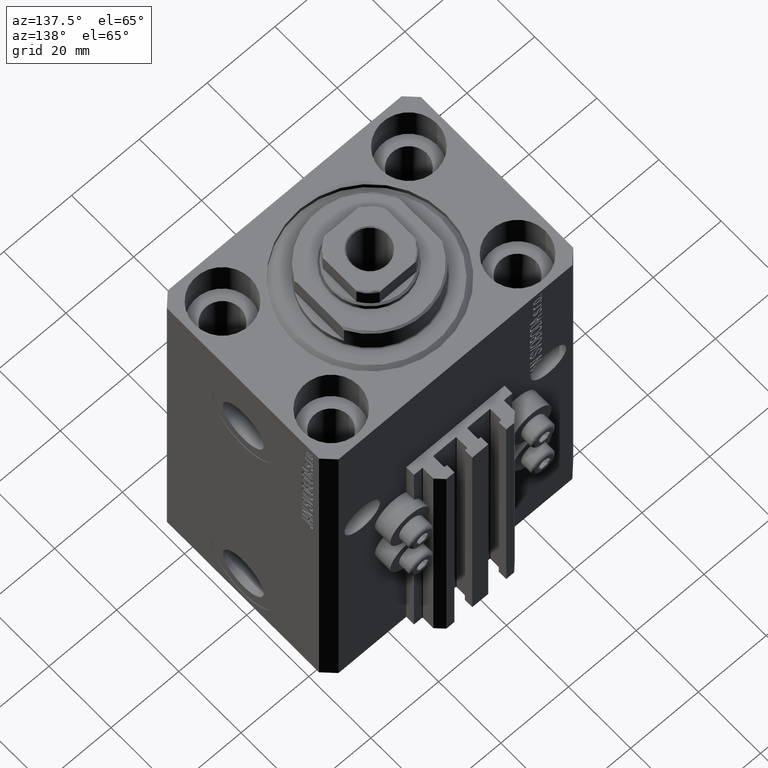
[diagram: clean part render]
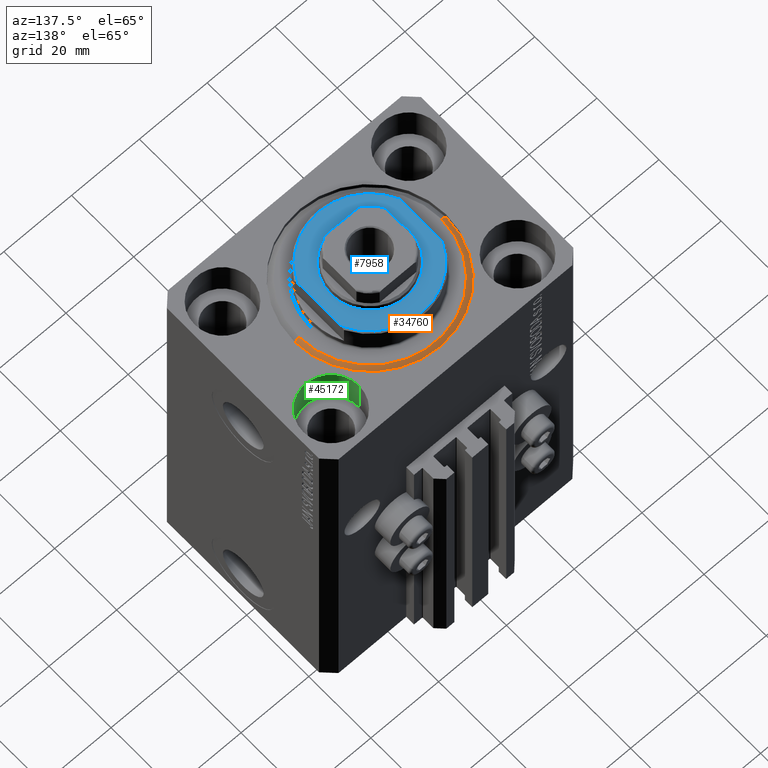
[diagram: same view with three faces highlighted in distinct colors, each labeled with its STEP entity id]
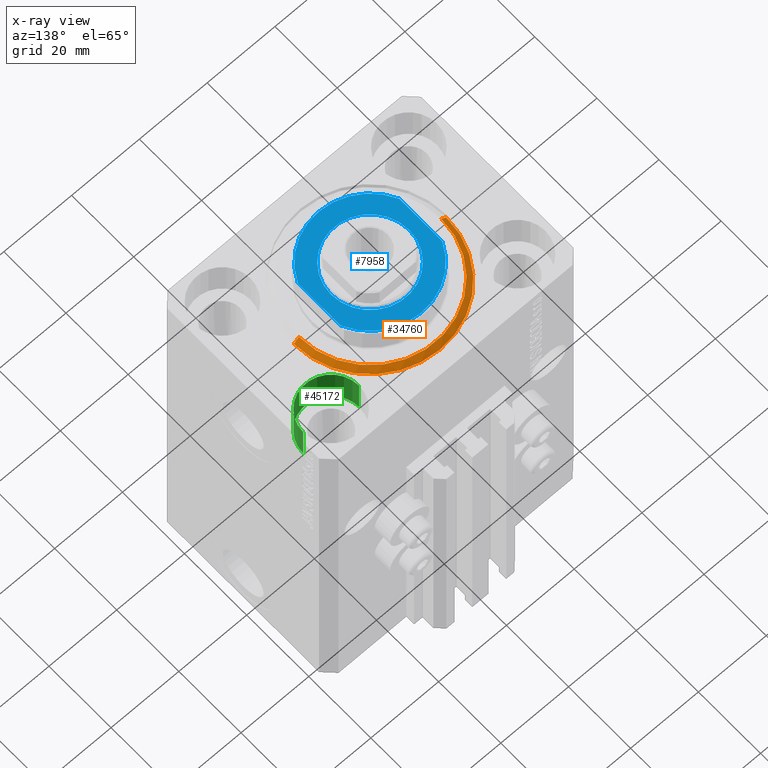
[diagram: x-ray of the same camera — body ghosted, the three highlighted faces saturated]
A machine part, auxiliary view with three faces highlighted in distinct colors.
The next image is the same camera in x-ray (body ghosted, the three faces saturated) — at least one of them is partly hidden behind the body in this view.
Their STEP definitions:

[orange] entity #34760 — the highlighted conical surface has half-angle 45 deg.
#51 = VERTEX_POINT ( 'NONE', #41482 ) ;
#439 = EDGE_LOOP ( 'NONE', ( #17323, #38061, #9336, #28697 ) ) ;
#1588 = DIRECTION ( 'NONE',  ( 1.000000000000000000, 0.000000000000000000, 0.000000000000000000 ) ) ;
#2478 = VERTEX_POINT ( 'NONE', #21731 ) ;
#2783 = CARTESIAN_POINT ( 'NONE',  ( 0.000000000000000000, 0.000000000000000000, 0.000000000000000000 ) ) ;
#3760 = EDGE_CURVE ( 'NONE', #4050, #43584, #44636, .T. ) ;
#4050 = VERTEX_POINT ( 'NONE', #32427 ) ;
#5272 = LINE ( 'NONE', #19864, #29986 ) ;
#5622 = CONICAL_SURFACE ( 'NONE', #42289, 22.50000000000000355, 0.7853981633974517207 ) ;
#6841 = CARTESIAN_POINT ( 'NONE',  ( -22.50000000000000355, 2.755455298081545172E-15, 1.500000000000039524 ) ) ;
#7854 = VECTOR ( 'NONE', #35551, 1000.000000000000114 ) ;
#9336 = ORIENTED_EDGE ( 'NONE', *, *, #3760, .F. ) ;
#10425 = LINE ( 'NONE', #6841, #7854 ) ;
#11978 = EDGE_CURVE ( 'NONE', #51, #4050, #5272, .T. ) ;
#12146 = DIRECTION ( 'NONE',  ( -0.000000000000000000, -0.000000000000000000, 1.000000000000000000 ) ) ;
#14144 = EDGE_CURVE ( 'NONE', #2478, #51, #24593, .T. ) ;
#17151 = AXIS2_PLACEMENT_3D ( 'NONE', #44928, #12146, #34627 ) ;
#17323 = ORIENTED_EDGE ( 'NONE', *, *, #14144, .F. ) ;
#19864 = CARTESIAN_POINT ( 'NONE',  ( 22.50000000000000355, 0.000000000000000000, 1.500000000000039524 ) ) ;
#21731 = CARTESIAN_POINT ( 'NONE',  ( -20.99999999999995381, 2.663606788145490261E-15, 0.000000000000000000 ) ) ;
#24593 = CIRCLE ( 'NONE', #27629, 20.99999999999995381 ) ;
#27429 = FACE_OUTER_BOUND ( 'NONE', #439, .T. ) ;
#27629 = AXIS2_PLACEMENT_3D ( 'NONE', #2783, #35553, #31971 ) ;
#28697 = ORIENTED_EDGE ( 'NONE', *, *, #11978, .F. ) ;
#29986 = VECTOR ( 'NONE', #41164, 1000.000000000000114 ) ;
#31018 = CARTESIAN_POINT ( 'NONE',  ( 0.000000000000000000, 0.000000000000000000, 1.500000000000039524 ) ) ;
#31971 = DIRECTION ( 'NONE',  ( 1.000000000000000000, 0.000000000000000000, 0.000000000000000000 ) ) ;
#32427 = CARTESIAN_POINT ( 'NONE',  ( 22.50000000000000355, 2.755455298081544383E-15, 1.500000000000039524 ) ) ;
#33984 = CARTESIAN_POINT ( 'NONE',  ( -22.50000000000000355, 0.000000000000000000, 1.500000000000039524 ) ) ;
#34627 = DIRECTION ( 'NONE',  ( 1.000000000000000000, 0.000000000000000000, 0.000000000000000000 ) ) ;
#34760 = ADVANCED_FACE ( 'NONE', ( #27429 ), #5622, .T. ) ;
#34846 = DIRECTION ( 'NONE',  ( -0.000000000000000000, -0.000000000000000000, 1.000000000000000000 ) ) ;
#35551 = DIRECTION ( 'NONE',  ( -0.7071067811865500152, 8.659560562354962440E-17, 0.7071067811865451302 ) ) ;
#35553 = DIRECTION ( 'NONE',  ( -0.000000000000000000, -0.000000000000000000, -1.000000000000000000 ) ) ;
#35741 = EDGE_CURVE ( 'NONE', #2478, #43584, #10425, .T. ) ;
#38061 = ORIENTED_EDGE ( 'NONE', *, *, #35741, .T. ) ;
#41164 = DIRECTION ( 'NONE',  ( 0.7071067811865500152, 0.000000000000000000, 0.7071067811865451302 ) ) ;
#41482 = CARTESIAN_POINT ( 'NONE',  ( 20.99999999999995381, 0.000000000000000000, 0.000000000000000000 ) ) ;
#42289 = AXIS2_PLACEMENT_3D ( 'NONE', #31018, #34846, #1588 ) ;
#43584 = VERTEX_POINT ( 'NONE', #33984 ) ;
#44636 = CIRCLE ( 'NONE', #17151, 22.50000000000000355 ) ;
#44928 = CARTESIAN_POINT ( 'NONE',  ( 0.000000000000000000, 0.000000000000000000, 1.500000000000039524 ) ) ;

[blue] entity #7958 — the highlighted planar face has unit normal (0, 0, 1).
#329 = EDGE_CURVE ( 'NONE', #24292, #32311, #24827, .T. ) ;
#525 = CARTESIAN_POINT ( 'NONE',  ( 11.49999999999998934, 1.408343819019454795E-15, -8.000000000000000000 ) ) ;
#617 = AXIS2_PLACEMENT_3D ( 'NONE', #29382, #29616, #14322 ) ;
#763 = CARTESIAN_POINT ( 'NONE',  ( -15.00000000000000000, -42.42640687119285303, -8.000000000000000000 ) ) ;
#1521 = FACE_BOUND ( 'NONE', #31257, .T. ) ;
#2416 = CARTESIAN_POINT ( 'NONE',  ( -11.49999999999998934, 0.000000000000000000, -8.000000000000000000 ) ) ;
#2431 = CARTESIAN_POINT ( 'NONE',  ( 0.000000000000000000, 0.000000000000000000, -8.000000000000000000 ) ) ;
#2886 = ORIENTED_EDGE ( 'NONE', *, *, #27563, .F. ) ;
#3593 = EDGE_CURVE ( 'NONE', #27417, #27607, #21272, .T. ) ;
#4772 = ORIENTED_EDGE ( 'NONE', *, *, #27584, .T. ) ;
#7958 = ADVANCED_FACE ( 'NONE', ( #1521, #20415 ), #27122, .T. ) ;
#9147 = CARTESIAN_POINT ( 'NONE',  ( -15.00000000000000000, -6.873863542433783280, -8.000000000000000000 ) ) ;
#9987 = DIRECTION ( 'NONE',  ( 0.000000000000000000, -1.000000000000000000, -0.000000000000000000 ) ) ;
#11661 = EDGE_CURVE ( 'NONE', #32311, #35120, #29957, .T. ) ;
#13034 = ORIENTED_EDGE ( 'NONE', *, *, #3593, .T. ) ;
#13197 = CIRCLE ( 'NONE', #19271, 16.50000000000000711 ) ;
#13253 = DIRECTION ( 'NONE',  ( 0.000000000000000000, 0.000000000000000000, -1.000000000000000000 ) ) ;
#13906 = AXIS2_PLACEMENT_3D ( 'NONE', #2431, #17052, #42631 ) ;
#14124 = CARTESIAN_POINT ( 'NONE',  ( 14.99999999999999645, 6.873863542433781504, -8.000000000000000000 ) ) ;
#14322 = DIRECTION ( 'NONE',  ( -1.000000000000000000, 0.000000000000000000, 0.000000000000000000 ) ) ;
#17048 = AXIS2_PLACEMENT_3D ( 'NONE', #38844, #13253, #46051 ) ;
#17052 = DIRECTION ( 'NONE',  ( 0.000000000000000000, 0.000000000000000000, -1.000000000000000000 ) ) ;
#17265 = DIRECTION ( 'NONE',  ( -1.000000000000000000, 0.000000000000000000, 0.000000000000000000 ) ) ;
#18243 = VERTEX_POINT ( 'NONE', #39931 ) ;
#19271 = AXIS2_PLACEMENT_3D ( 'NONE', #42618, #43099, #17265 ) ;
#19443 = LINE ( 'NONE', #763, #42977 ) ;
#20415 = FACE_OUTER_BOUND ( 'NONE', #43097, .T. ) ;
#21272 = CIRCLE ( 'NONE', #617, 11.49999999999998934 ) ;
#24292 = VERTEX_POINT ( 'NONE', #14124 ) ;
#24827 = LINE ( 'NONE', #42768, #24961 ) ;
#24961 = VECTOR ( 'NONE', #9987, 1000.000000000000000 ) ;
#27122 = PLANE ( 'NONE',  #17048 ) ;
#27417 = VERTEX_POINT ( 'NONE', #525 ) ;
#27563 = EDGE_CURVE ( 'NONE', #18243, #35120, #19443, .T. ) ;
#27584 = EDGE_CURVE ( 'NONE', #18243, #24292, #13197, .T. ) ;
#27607 = VERTEX_POINT ( 'NONE', #2416 ) ;
#28882 = AXIS2_PLACEMENT_3D ( 'NONE', #42674, #46287, #41974 ) ;
#29382 = CARTESIAN_POINT ( 'NONE',  ( 0.000000000000000000, 0.000000000000000000, -8.000000000000000000 ) ) ;
#29616 = DIRECTION ( 'NONE',  ( -0.000000000000000000, -0.000000000000000000, 1.000000000000000000 ) ) ;
#29957 = CIRCLE ( 'NONE', #13906, 16.50000000000000711 ) ;
#29969 = DIRECTION ( 'NONE',  ( -0.000000000000000000, -1.000000000000000000, -0.000000000000000000 ) ) ;
#31257 = EDGE_LOOP ( 'NONE', ( #33705, #13034 ) ) ;
#31924 = ORIENTED_EDGE ( 'NONE', *, *, #11661, .T. ) ;
#32311 = VERTEX_POINT ( 'NONE', #39059 ) ;
#33705 = ORIENTED_EDGE ( 'NONE', *, *, #39303, .T. ) ;
#35120 = VERTEX_POINT ( 'NONE', #9147 ) ;
#38844 = CARTESIAN_POINT ( 'NONE',  ( 0.000000000000000000, 0.000000000000000000, -8.000000000000000000 ) ) ;
#39059 = CARTESIAN_POINT ( 'NONE',  ( 14.99999999999999645, -6.873863542433781504, -8.000000000000000000 ) ) ;
#39303 = EDGE_CURVE ( 'NONE', #27607, #27417, #41876, .T. ) ;
#39598 = ORIENTED_EDGE ( 'NONE', *, *, #329, .T. ) ;
#39931 = CARTESIAN_POINT ( 'NONE',  ( -14.99999999999999645, 6.873863542433781504, -8.000000000000000000 ) ) ;
#41876 = CIRCLE ( 'NONE', #28882, 11.49999999999998934 ) ;
#41974 = DIRECTION ( 'NONE',  ( -1.000000000000000000, 0.000000000000000000, 0.000000000000000000 ) ) ;
#42618 = CARTESIAN_POINT ( 'NONE',  ( 0.000000000000000000, 0.000000000000000000, -8.000000000000000000 ) ) ;
#42631 = DIRECTION ( 'NONE',  ( -1.000000000000000000, 0.000000000000000000, 0.000000000000000000 ) ) ;
#42674 = CARTESIAN_POINT ( 'NONE',  ( 0.000000000000000000, 0.000000000000000000, -8.000000000000000000 ) ) ;
#42768 = CARTESIAN_POINT ( 'NONE',  ( 15.00000000000000000, -42.42640687119285303, -8.000000000000000000 ) ) ;
#42977 = VECTOR ( 'NONE', #29969, 1000.000000000000000 ) ;
#43097 = EDGE_LOOP ( 'NONE', ( #4772, #39598, #31924, #2886 ) ) ;
#43099 = DIRECTION ( 'NONE',  ( 0.000000000000000000, 0.000000000000000000, -1.000000000000000000 ) ) ;
#46051 = DIRECTION ( 'NONE',  ( -1.000000000000000000, 0.000000000000000000, -0.000000000000000000 ) ) ;
#46287 = DIRECTION ( 'NONE',  ( -0.000000000000000000, -0.000000000000000000, 1.000000000000000000 ) ) ;

[green] entity #45172 — the highlighted cylindrical surface (partial cylindrical patch) has radius 8.25 mm, axis along (0, 0, 1).
#1333 = DIRECTION ( 'NONE',  ( 1.000000000000000000, 0.000000000000000000, 0.000000000000000000 ) ) ;
#5259 = VECTOR ( 'NONE', #24156, 1000.000000000000000 ) ;
#5603 = CIRCLE ( 'NONE', #33080, 8.249999999999992895 ) ;
#6185 = DIRECTION ( 'NONE',  ( -0.000000000000000000, -0.000000000000000000, 1.000000000000000000 ) ) ;
#6615 = EDGE_LOOP ( 'NONE', ( #46047, #13312, #37309, #31757 ) ) ;
#7558 = EDGE_CURVE ( 'NONE', #8383, #36039, #5603, .T. ) ;
#8383 = VERTEX_POINT ( 'NONE', #37750 ) ;
#9328 = LINE ( 'NONE', #38744, #5259 ) ;
#9491 = CARTESIAN_POINT ( 'NONE',  ( 27.49999999999999645, 17.50000000000001066, -11.00000000000000000 ) ) ;
#11563 = VERTEX_POINT ( 'NONE', #36444 ) ;
#13312 = ORIENTED_EDGE ( 'NONE', *, *, #26757, .T. ) ;
#14731 = CARTESIAN_POINT ( 'NONE',  ( 35.74999999999999289, 17.50000000000001066, -11.00000000000000000 ) ) ;
#14770 = CIRCLE ( 'NONE', #18579, 8.249999999999992895 ) ;
#16436 = DIRECTION ( 'NONE',  ( 0.000000000000000000, 0.000000000000000000, 1.000000000000000000 ) ) ;
#17962 = FACE_OUTER_BOUND ( 'NONE', #6615, .T. ) ;
#18579 = AXIS2_PLACEMENT_3D ( 'NONE', #9491, #16436, #27897 ) ;
#20594 = DIRECTION ( 'NONE',  ( 1.000000000000000000, 0.000000000000000000, 0.000000000000000000 ) ) ;
#21551 = DIRECTION ( 'NONE',  ( -0.000000000000000000, -0.000000000000000000, 1.000000000000000000 ) ) ;
#22106 = VERTEX_POINT ( 'NONE', #14731 ) ;
#24156 = DIRECTION ( 'NONE',  ( -0.000000000000000000, -0.000000000000000000, 1.000000000000000000 ) ) ;
#26757 = EDGE_CURVE ( 'NONE', #11563, #8383, #39922, .T. ) ;
#27897 = DIRECTION ( 'NONE',  ( 1.000000000000000000, 0.000000000000000000, 0.000000000000000000 ) ) ;
#28954 = CYLINDRICAL_SURFACE ( 'NONE', #42489, 8.249999999999992895 ) ;
#29458 = CARTESIAN_POINT ( 'NONE',  ( 35.74999999999999289, 17.50000000000001066, 0.000000000000000000 ) ) ;
#31757 = ORIENTED_EDGE ( 'NONE', *, *, #40641, .F. ) ;
#33080 = AXIS2_PLACEMENT_3D ( 'NONE', #37470, #33412, #1333 ) ;
#33412 = DIRECTION ( 'NONE',  ( 0.000000000000000000, 0.000000000000000000, 1.000000000000000000 ) ) ;
#33668 = EDGE_CURVE ( 'NONE', #11563, #22106, #14770, .T. ) ;
#35886 = CARTESIAN_POINT ( 'NONE',  ( 27.49999999999999645, 17.50000000000001066, -11.00000000000000000 ) ) ;
#36039 = VERTEX_POINT ( 'NONE', #29458 ) ;
#36444 = CARTESIAN_POINT ( 'NONE',  ( 19.25000000000000000, 17.50000000000001066, -11.00000000000000000 ) ) ;
#37309 = ORIENTED_EDGE ( 'NONE', *, *, #7558, .T. ) ;
#37470 = CARTESIAN_POINT ( 'NONE',  ( 27.49999999999999645, 17.50000000000001066, 0.000000000000000000 ) ) ;
#37750 = CARTESIAN_POINT ( 'NONE',  ( 19.25000000000000000, 17.50000000000001066, 0.000000000000000000 ) ) ;
#38744 = CARTESIAN_POINT ( 'NONE',  ( 35.74999999999999289, 17.50000000000001066, -11.00000000000000000 ) ) ;
#39681 = CARTESIAN_POINT ( 'NONE',  ( 19.25000000000000000, 17.50000000000001066, -11.00000000000000000 ) ) ;
#39922 = LINE ( 'NONE', #39681, #44470 ) ;
#40641 = EDGE_CURVE ( 'NONE', #22106, #36039, #9328, .T. ) ;
#42489 = AXIS2_PLACEMENT_3D ( 'NONE', #35886, #21551, #20594 ) ;
#44470 = VECTOR ( 'NONE', #6185, 1000.000000000000000 ) ;
#45172 = ADVANCED_FACE ( 'NONE', ( #17962 ), #28954, .F. ) ;
#46047 = ORIENTED_EDGE ( 'NONE', *, *, #33668, .F. ) ;